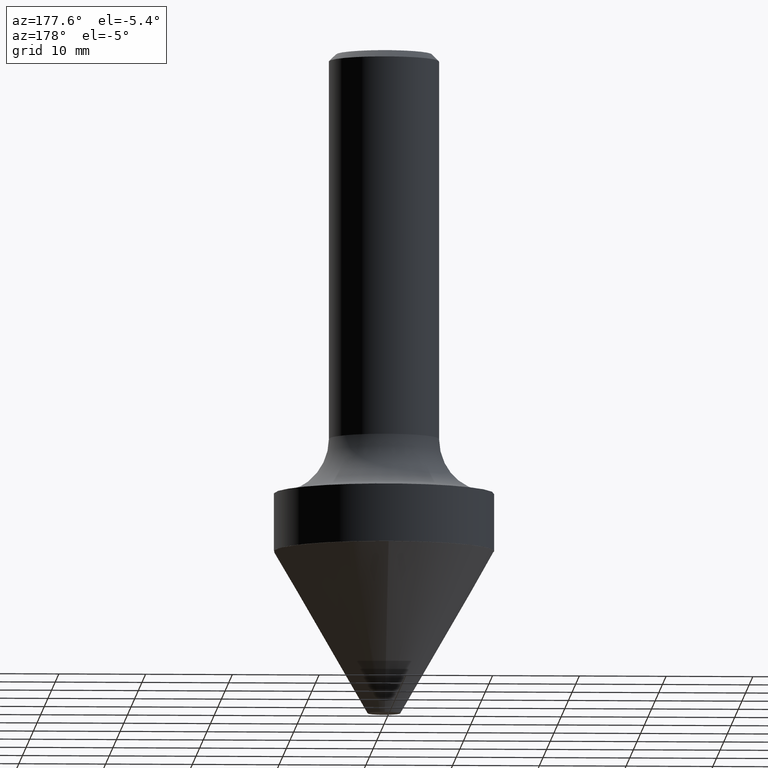
[diagram: clean part render]
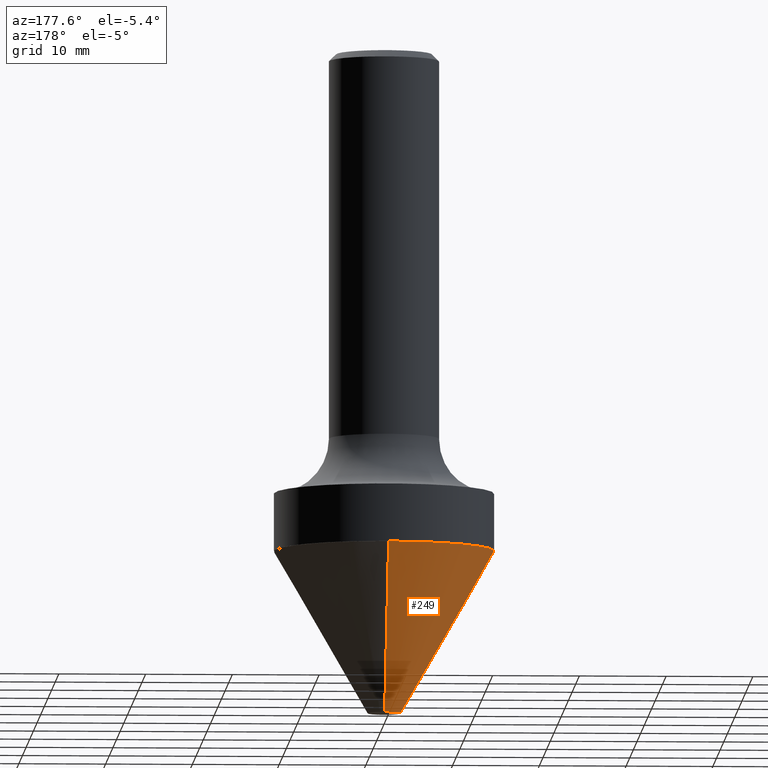
[diagram: same view with one face highlighted and labeled with its STEP entity id]
A machine part, auxiliary view. The second image highlights one B-rep face of the part: STEP entity #249.
In plain terms, the highlighted conical surface has half-angle 30 deg.
Its self-contained STEP definition (entity closure, byte-faithful):
#3 = CARTESIAN_POINT ( 'NONE',  ( 7.348329163918454609E-29, -1.045736996656903780E-14, -3.000000000000000888 ) ) ;
#102 = DIRECTION ( 'NONE',  ( -6.982962677686265922E-15, -1.000000000000000000, 3.278217592397116257E-15 ) ) ;
#120 = LINE ( 'NONE', #205, #511 ) ;
#126 = CONICAL_SURFACE ( 'NONE', #415, 0.4999999999999999445, 0.5235987755983376735 ) ;
#128 = VERTEX_POINT ( 'NONE', #268 ) ;
#134 = DIRECTION ( 'NONE',  ( -2.523561818578368665E-29, 3.379647700317803682E-15, 1.000000000000000000 ) ) ;
#158 = DIRECTION ( 'NONE',  ( -6.982962677686266711E-15, -1.000000000000000000, 0.000000000000000000 ) ) ;
#177 = LINE ( 'NONE', #215, #359 ) ;
#180 = CARTESIAN_POINT ( 'NONE',  ( 5.486309880159878324E-29, -7.963684595371283721E-15, -2.262146355975725331 ) ) ;
#182 = DIRECTION ( 'NONE',  ( -2.523561818578368665E-29, 3.379647700317803682E-15, 1.000000000000000000 ) ) ;
#187 = VERTEX_POINT ( 'NONE', #447 ) ;
#195 = CIRCLE ( 'NONE', #485, 0.4999999999999999445 ) ;
#205 = CARTESIAN_POINT ( 'NONE',  ( -3.491481338843077741E-15, -0.5000000000000078826, -2.262146355975723555 ) ) ;
#215 = CARTESIAN_POINT ( 'NONE',  ( 3.552713678800554572E-15, 0.4999999999999919509, -2.262146355975727108 ) ) ;
#220 = CIRCLE ( 'NONE', #409, 0.07400000000000006573 ) ;
#228 = CARTESIAN_POINT ( 'NONE',  ( 5.486309880159878324E-29, -7.963684595371283721E-15, -2.262146355975725331 ) ) ;
#249 = ADVANCED_FACE ( 'NONE', ( #333 ), #126, .T. ) ;
#251 = DIRECTION ( 'NONE',  ( -2.523561818578368665E-29, 3.379647700317803682E-15, 1.000000000000000000 ) ) ;
#254 = VERTEX_POINT ( 'NONE', #492 ) ;
#268 = CARTESIAN_POINT ( 'NONE',  ( -3.491481338843077741E-15, -0.5000000000000078826, -2.262146355975723555 ) ) ;
#296 = DIRECTION ( 'NONE',  ( 3.552713678800716288E-15, 0.5000000000000364153, 0.8660254037844175024 ) ) ;
#331 = CARTESIAN_POINT ( 'NONE',  ( 2.039257651631553242E-15, 0.07399999999998961575, -3.000000000000000888 ) ) ;
#333 = FACE_OUTER_BOUND ( 'NONE', #342, .T. ) ;
#334 = ORIENTED_EDGE ( 'NONE', *, *, #423, .T. ) ;
#336 = DIRECTION ( 'NONE',  ( -6.982962677686265922E-15, -1.000000000000000000, 3.278217592397116257E-15 ) ) ;
#342 = EDGE_LOOP ( 'NONE', ( #506, #334, #465, #344 ) ) ;
#344 = ORIENTED_EDGE ( 'NONE', *, *, #500, .F. ) ;
#359 = VECTOR ( 'NONE', #296, 39.37007874015748854 ) ;
#409 = AXIS2_PLACEMENT_3D ( 'NONE', #3, #251, #158 ) ;
#415 = AXIS2_PLACEMENT_3D ( 'NONE', #228, #182, #102 ) ;
#423 = EDGE_CURVE ( 'NONE', #478, #254, #220, .T. ) ;
#433 = EDGE_CURVE ( 'NONE', #254, #128, #120, .T. ) ;
#447 = CARTESIAN_POINT ( 'NONE',  ( 3.552713678800554572E-15, 0.4999999999999919509, -2.262146355975727108 ) ) ;
#465 = ORIENTED_EDGE ( 'NONE', *, *, #433, .T. ) ;
#473 = DIRECTION ( 'NONE',  ( -3.491481338843389735E-15, -0.5000000000000307532, 0.8660254037844209440 ) ) ;
#478 = VERTEX_POINT ( 'NONE', #331 ) ;
#480 = EDGE_CURVE ( 'NONE', #478, #187, #177, .T. ) ;
#485 = AXIS2_PLACEMENT_3D ( 'NONE', #180, #134, #336 ) ;
#492 = CARTESIAN_POINT ( 'NONE',  ( -5.167392381487107236E-16, -0.07400000000001052958, -3.000000000000000888 ) ) ;
#500 = EDGE_CURVE ( 'NONE', #187, #128, #195, .T. ) ;
#506 = ORIENTED_EDGE ( 'NONE', *, *, #480, .F. ) ;
#511 = VECTOR ( 'NONE', #473, 39.37007874015748143 ) ;